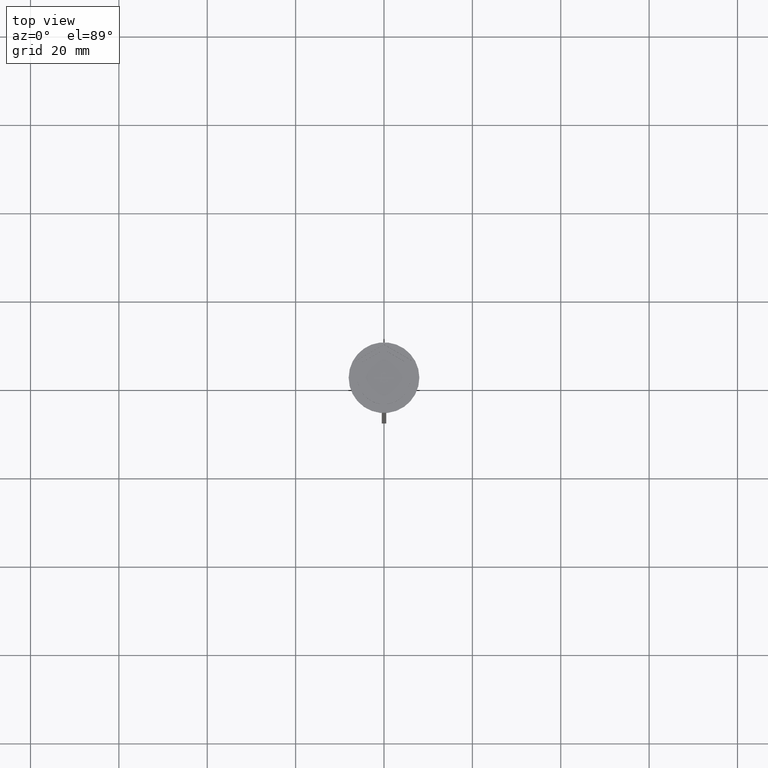
[diagram: clean part render]
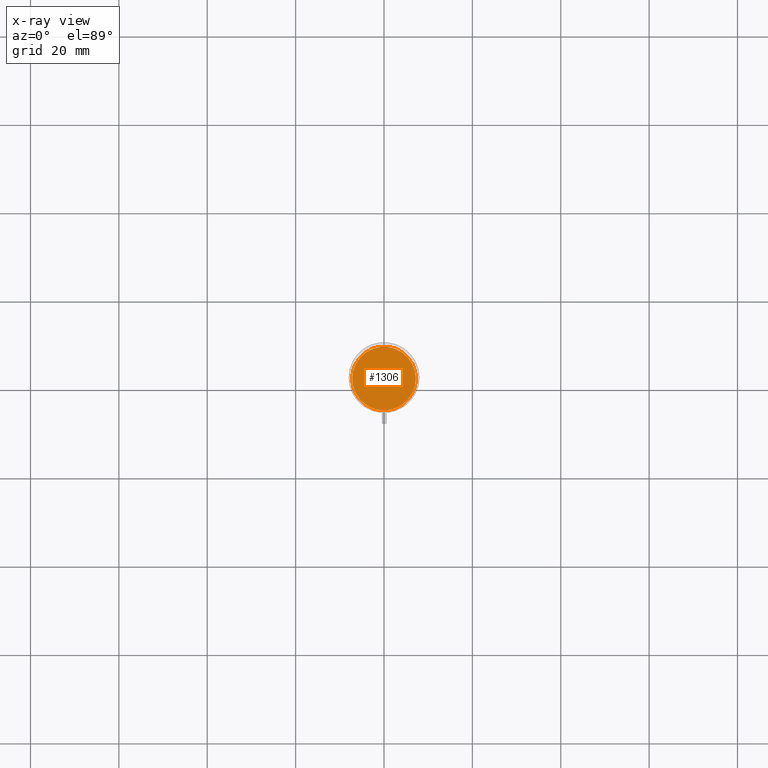
[diagram: x-ray — body ghosted, one internal face saturated and labeled with its STEP entity id]
A machine part, top view, then the same camera in x-ray: the body is ghosted and one INTERNAL B-rep face — a face not visible from any outside direction — is saturated and labeled: STEP entity #1306.
In plain terms, the highlighted planar face has unit normal (0, 0, -1).
Its self-contained STEP definition (entity closure, byte-faithful):
#373 = VERTEX_POINT ( 'NONE', #1463 ) ;
#376 = EDGE_CURVE ( 'NONE', #373, #2026, #1106, .T. ) ;
#516 = PLANE ( 'NONE',  #1546 ) ;
#551 = DIRECTION ( 'NONE',  ( 0.000000000000000000, 0.000000000000000000, -1.000000000000000000 ) ) ;
#553 = EDGE_CURVE ( 'NONE', #2026, #373, #2229, .T. ) ;
#617 = AXIS2_PLACEMENT_3D ( 'NONE', #1773, #1163, #1923 ) ;
#805 = EDGE_LOOP ( 'NONE', ( #1541, #954 ) ) ;
#954 = ORIENTED_EDGE ( 'NONE', *, *, #553, .T. ) ;
#1106 = CIRCLE ( 'NONE', #2494, 7.200000000000001954 ) ;
#1163 = DIRECTION ( 'NONE',  ( -0.000000000000000000, -0.000000000000000000, 1.000000000000000000 ) ) ;
#1288 = DIRECTION ( 'NONE',  ( -1.000000000000000000, 0.000000000000000000, 0.000000000000000000 ) ) ;
#1296 = FACE_OUTER_BOUND ( 'NONE', #805, .T. ) ;
#1306 = ADVANCED_FACE ( 'NONE', ( #1296 ), #516, .F. ) ;
#1318 = CARTESIAN_POINT ( 'NONE',  ( 0.000000000000000000, 0.000000000000000000, -12.00000000000000000 ) ) ;
#1463 = CARTESIAN_POINT ( 'NONE',  ( -7.200000000000001954, 0.000000000000000000, -12.00000000000000000 ) ) ;
#1541 = ORIENTED_EDGE ( 'NONE', *, *, #376, .T. ) ;
#1546 = AXIS2_PLACEMENT_3D ( 'NONE', #1318, #551, #2048 ) ;
#1658 = CARTESIAN_POINT ( 'NONE',  ( 0.000000000000000000, 0.000000000000000000, -12.00000000000000000 ) ) ;
#1773 = CARTESIAN_POINT ( 'NONE',  ( 0.000000000000000000, 0.000000000000000000, -12.00000000000000000 ) ) ;
#1923 = DIRECTION ( 'NONE',  ( -1.000000000000000000, 0.000000000000000000, 0.000000000000000000 ) ) ;
#2026 = VERTEX_POINT ( 'NONE', #2374 ) ;
#2048 = DIRECTION ( 'NONE',  ( -1.000000000000000000, 0.000000000000000000, -0.000000000000000000 ) ) ;
#2229 = CIRCLE ( 'NONE', #617, 7.200000000000001954 ) ;
#2374 = CARTESIAN_POINT ( 'NONE',  ( 7.200000000000001954, 9.001153973733047589E-16, -12.00000000000000000 ) ) ;
#2423 = DIRECTION ( 'NONE',  ( -0.000000000000000000, -0.000000000000000000, 1.000000000000000000 ) ) ;
#2494 = AXIS2_PLACEMENT_3D ( 'NONE', #1658, #2423, #1288 ) ;